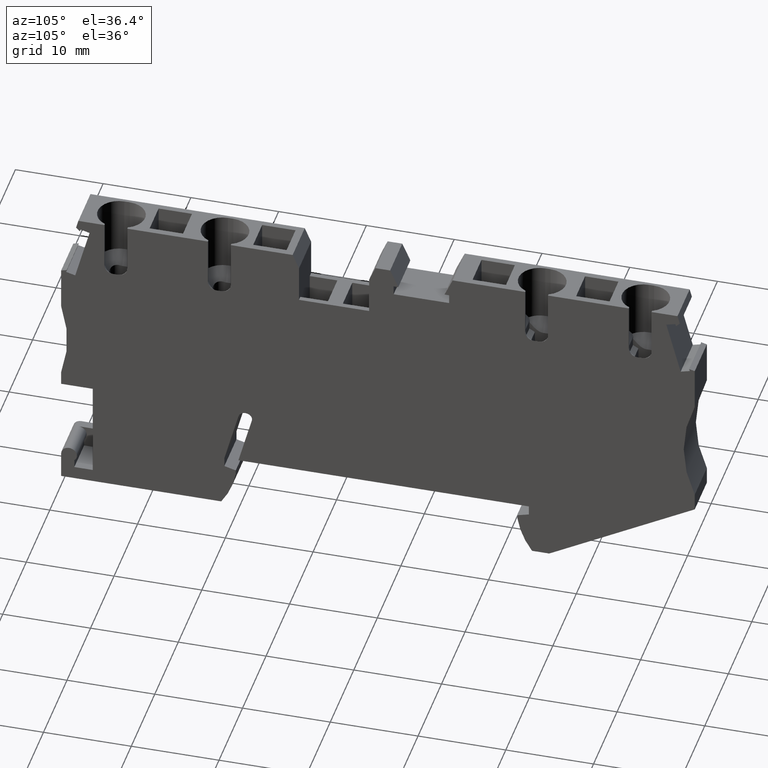
[diagram: clean part render]
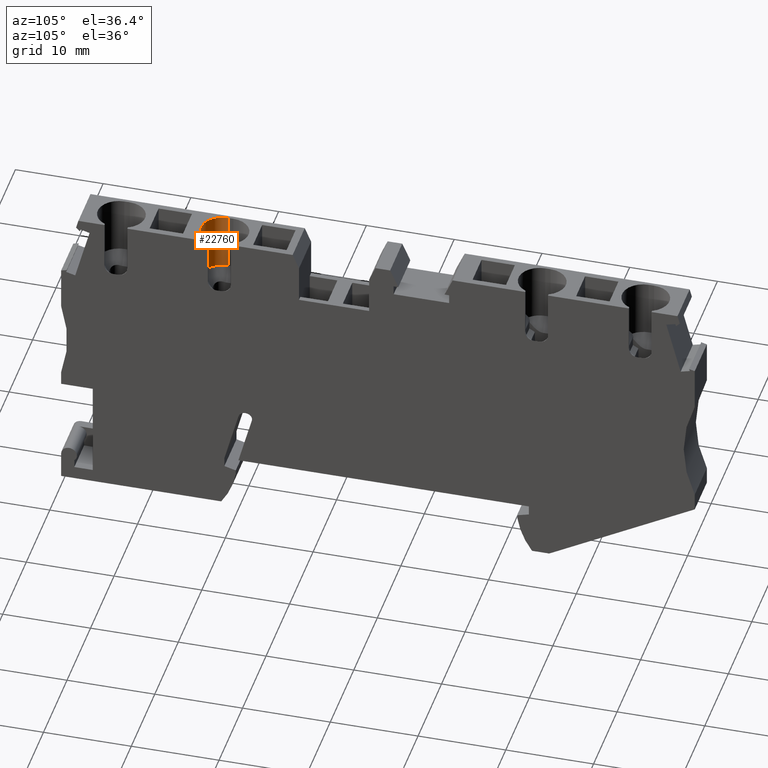
[diagram: same view with one face highlighted and labeled with its STEP entity id]
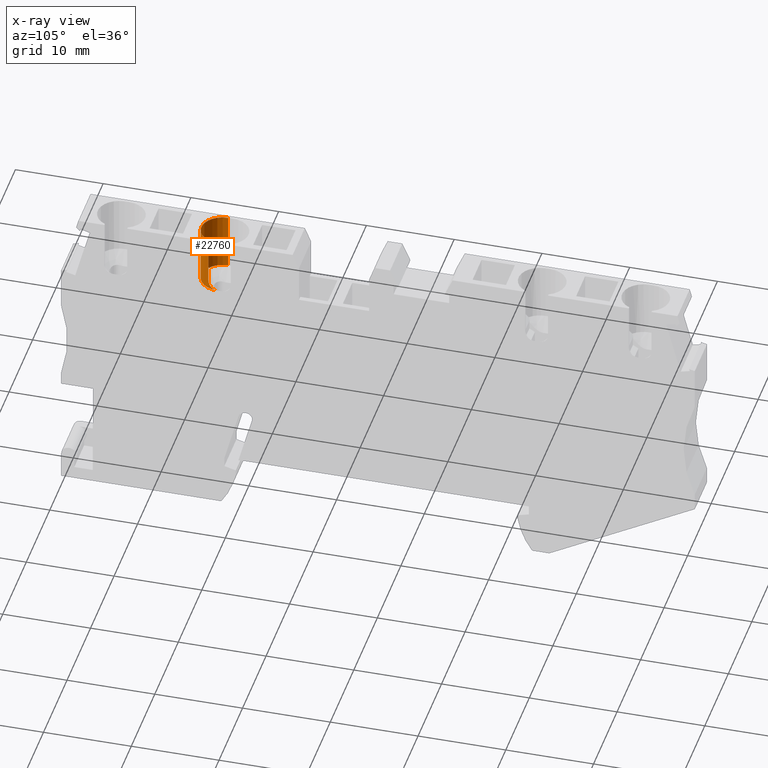
[diagram: x-ray of the same camera — body ghosted, the highlighted face saturated]
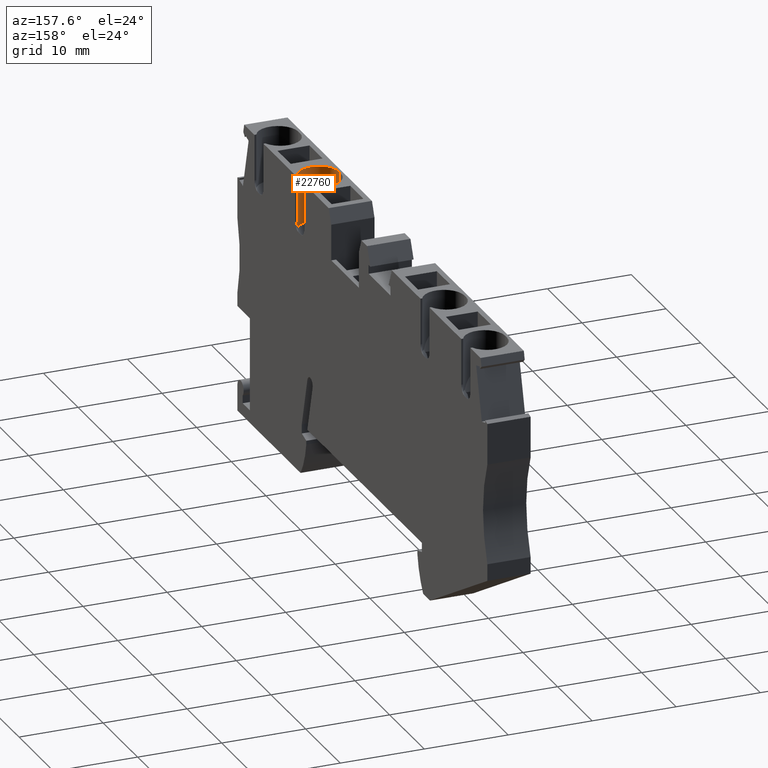
[diagram: same view with one face highlighted and labeled with its STEP entity id]
A machine part, auxiliary view. The second image highlights one B-rep face of the part: STEP entity #22760.
The next image is the same camera in x-ray: the body ghosted, the highlighted face saturated — about 0% of this face is hidden behind the body in this view.
A second angle (auxiliary view) of the same face is appended — the face is thin or edge-on in the first view.
In plain terms, the highlighted cylindrical surface (edge-blend (fillet) strip) has radius 2.4 mm, axis along (0, 0, 1).
Its self-contained STEP definition (entity closure, byte-faithful):
#16770=CARTESIAN_POINT('',(14.1467833101414,31.0375687600117,
-4.80000000000001));
#16780=VERTEX_POINT('',#16770);
#16930=CARTESIAN_POINT('',(14.9389337358259,24.586018736717,
-4.79999999999013));
#16940=VERTEX_POINT('',#16930);
#16970=CARTESIAN_POINT('',(14.9749700131935,24.2925268098612,
-4.7999999999898));
#16980=DIRECTION('',(-0.121869343405497,0.99254615164128,
-1.13103740604782E-12));
#16990=VECTOR('',#16980,1.);
#17000=LINE('',#16970,#16990);
#17010=EDGE_CURVE('',#16940,#16780,#17000,.T.);
#20850=CARTESIAN_POINT('',(14.8170643924407,25.5785648883674,
1.00000000000873));
#20860=DIRECTION('',(3.67227472839922E-12,1.59043286552523E-12,1.));
#20870=DIRECTION('',(0.99254615164128,0.121869343405497,
-3.83873116119485E-12));
#20880=AXIS2_PLACEMENT_3D('',#20850,#20860,#20870);
#20890=CYLINDRICAL_SURFACE('',#20880,1.);
#20900=CARTESIAN_POINT('',(14.9749700132023,24.2925268098651,
-2.39999999998979));
#20910=DIRECTION('',(-0.121869343405497,0.992546151641281,
-1.13103740604782E-12));
#20920=DIRECTION('',(-0.99254615164128,-0.121869343405497,
3.83873116119485E-12));
#20930=AXIS2_PLACEMENT_3D('',#20900,#20910,#20920);
#20940=CYLINDRICAL_SURFACE('',#20930,2.4);
#20950=CARTESIAN_POINT('',(13.824518240671,25.4566955459694,
-0.218257577060701));
#20960=CARTESIAN_POINT('',(13.8265439426175,25.4401975274187,
-0.218257577068431));
#20970=CARTESIAN_POINT('',(13.8289804712131,25.4237571705539,
-0.218067316109467));
#20980=CARTESIAN_POINT('',(13.8318201059643,25.4074108759251,
-0.217689124931567));
#20990=CARTESIAN_POINT('',(13.8346597507832,25.3910645233416,
-0.217310932412816));
#21000=CARTESIAN_POINT('',(13.8379024034197,25.3748126553134,
-0.216744838382278));
#21010=CARTESIAN_POINT('',(13.8415364987011,25.3586891767812,
-0.215996705073546));
#21020=CARTESIAN_POINT('',(13.845171902345,25.3425598934052,
-0.21524830241865));
#21030=CARTESIAN_POINT('',(13.849192176412,25.3265838762194,
-0.214319453802921));
#21040=CARTESIAN_POINT('',(13.8536018971602,25.3107216129293,
-0.213214334856115));
#21050=CARTESIAN_POINT('',(13.8580139218128,25.2948510622346,
-0.212108638528408));
#21060=CARTESIAN_POINT('',(13.8628234217196,25.279071290817,
-0.210824344158483));
#21070=CARTESIAN_POINT('',(13.8680233940395,25.2634122533421,
-0.209368591833399));
#21080=CARTESIAN_POINT('',(13.8732233466922,25.2477532750928,
-0.207912845014255));
#21090=CARTESIAN_POINT('',(13.8788136861527,25.2322153548162,
-0.206285674118027));
#21100=CARTESIAN_POINT('',(13.8847838348997,25.2168288491887,
-0.204497188938387));
#21110=CARTESIAN_POINT('',(13.8907539728188,25.2014423714673,
-0.202708707002487));
#21120=CARTESIAN_POINT('',(13.897103809074,25.1862076154905,
-0.200758961030397));
#21130=CARTESIAN_POINT('',(13.9038193480616,25.1711541755399,
-0.198660784949835));
#21140=CARTESIAN_POINT('',(13.9105348865496,25.1561007367092,
-0.196562609025373));
#21150=CARTESIAN_POINT('',(13.9176159993852,25.1412288933851,
-0.194316065028695));
#21160=CARTESIAN_POINT('',(13.9250456242752,25.1265665285806,
-0.191936309705527));
#21170=CARTESIAN_POINT('',(13.9324752603612,25.1119041416805,
-0.18955655079617));
#21180=CARTESIAN_POINT('',(13.940253269781,25.0974514791453,
-0.187043649637344));
#21190=CARTESIAN_POINT('',(13.9483600280602,25.0832339612938,
-0.184414573471207));
#21200=CARTESIAN_POINT('',(13.9564668107444,25.0690164006409,
-0.181785489390343));
#21210=CARTESIAN_POINT('',(13.9649021989742,25.0550341943966,
-0.179040302011553));
#21220=CARTESIAN_POINT('',(13.9736446381303,25.0413097180356,
-0.176197207619399));
#21230=CARTESIAN_POINT('',(13.9823859363627,25.0275870327743,
-0.173354484262577));
#21240=CARTESIAN_POINT('',(13.9914294075068,25.0141261423744,
-0.170415406049273));
#21250=CARTESIAN_POINT('',(14.000820054966,25.0008580582627,
-0.167377011765158));
#21260=CARTESIAN_POINT('',(14.0195925110057,24.9743343785269,
-0.161303083063426));
#21270=CARTESIAN_POINT('',(14.0396773454461,24.9487028122729,
-0.1548564570527));
#21280=CARTESIAN_POINT('',(14.0609528325275,24.9241221414638,
-0.148175269790326));
#21290=CARTESIAN_POINT('',(14.0822282101732,24.8995415970916,
-0.141494116894294));
#21300=CARTESIAN_POINT('',(14.1046911536077,24.8760156514733,
-0.134579966458064));
#21310=CARTESIAN_POINT('',(14.1281919042876,24.8536823495555,
-0.127579597206966));
#21320=CARTESIAN_POINT('',(14.1516928557521,24.8313488568275,
-0.120579168146446));
#21330=CARTESIAN_POINT('',(14.1762281476064,24.8102110725268,
-0.113494071772405));
#21340=CARTESIAN_POINT('',(14.2016303102754,24.7903765285719,
-0.106468109315122));
#21350=CARTESIAN_POINT('',(14.2270349629668,24.770540040355,
-0.0994414581446875));
#21360=CARTESIAN_POINT('',(14.2535061912748,24.7518513928071,
-0.0924184993691653));
#21370=CARTESIAN_POINT('',(14.2808982568035,24.7344524106695,
-0.0855404859810899));
#21380=CARTESIAN_POINT('',(14.3082901066206,24.7170535655484,
-0.0786625267571367));
#21390=CARTESIAN_POINT('',(14.3365987495186,24.7009472315583,
-0.0719310621964083));
#21400=CARTESIAN_POINT('',(14.3656502081731,24.6862503506317,
-0.0654809687429796));
#21410=CARTESIAN_POINT('',(14.3947018443684,24.6715533798887,
-0.0590308358714251));
#21420=CARTESIAN_POINT('',(14.4244914194818,24.6582682572939,
-0.0528635458853835));
#21430=CARTESIAN_POINT('',(14.4548297868289,24.6464779339992,
-0.0470974363748215));
#21440=CARTESIAN_POINT('',(14.4700048733494,24.6405804783434,
-0.0442132597245758));
#21450=CARTESIAN_POINT('',(14.4852880431032,24.6350661319153,
-0.0414341712206561));
#21460=CARTESIAN_POINT('',(14.5007440749447,24.6299124458233,
-0.0387575224924025));
#21470=CARTESIAN_POINT('',(14.5162006682224,24.6247585725251,
-0.0360807765356207));
#21480=CARTESIAN_POINT('',(14.5318210900645,24.6199701000306,
-0.033508565555774));
#21490=CARTESIAN_POINT('',(14.547577607785,24.6155608006806,
-0.0310552689126006));
#21500=CARTESIAN_POINT('',(14.5633341027025,24.6111515077119,
-0.0286019758198624));
#21510=CARTESIAN_POINT('',(14.5792264464793,24.6071214687367,
-0.0262676522496529));
#21520=CARTESIAN_POINT('',(14.5952251254966,24.6034816408203,
-0.0240651355983441));
#21530=CARTESIAN_POINT('',(14.6112238052026,24.5998418127472,
-0.0218626188522156));
#21540=CARTESIAN_POINT('',(14.6273285509057,24.5965922595005,
-0.0197919579097938));
#21550=CARTESIAN_POINT('',(14.6435088660275,24.5937408029308,
-0.0178641122446825));
#21560=CARTESIAN_POINT('',(14.6596892076368,24.5908893416931,
-0.0159362634236511));
#21570=CARTESIAN_POINT('',(14.6759448345497,24.5884360195078,
-0.0141512694798678));
#21580=CARTESIAN_POINT('',(14.6922451862279,24.5863853855734,
-0.0125179646176282));
#21590=CARTESIAN_POINT('',(14.7085445528388,24.5843348755635,
-0.0108847584597086));
#21600=CARTESIAN_POINT('',(14.7248826434063,24.5826865239101,
-0.00940334545438429));
#21610=CARTESIAN_POINT('',(14.7413032119528,24.5814388965615,
-0.00807546329893946));
#21620=CARTESIAN_POINT('',(14.7577182936946,24.5801916860979,
-0.00674802484493571));
#21630=CARTESIAN_POINT('',(14.7741906188756,24.579348134519,
-0.00557655939613186));
#21640=CARTESIAN_POINT('',(14.7906858353424,24.5789128630462,
-0.00456822804963956));
#21650=CARTESIAN_POINT('',(14.807181046546,24.5784775917123,
-0.00355989702488495));
#21660=CARTESIAN_POINT('',(14.8236987903214,24.5784506138923,
-0.00271472949870766));
#21670=CARTESIAN_POINT('',(14.8402042829919,24.5788326514818,
-0.00203735200549639));
#21680=CARTESIAN_POINT('',(14.8567098040599,24.5792146897286,
-0.00135997334686763));
#21690=CARTESIAN_POINT('',(14.8732027077082,24.5800057252388,
-0.000850398809150966));
#21700=CARTESIAN_POINT('',(14.889648987769,24.5812026289432,
-0.000510612221888023));
#21710=CARTESIAN_POINT('',(14.9060955430746,24.582399552679,
-0.000170819947961811));
#21720=CARTESIAN_POINT('',(14.9225354495941,24.5840052803479,
9.94166732793012E-12));
#21730=CARTESIAN_POINT('',(14.9389337358435,24.5860187367246,
9.87829835300396E-12));
#21740=B_SPLINE_CURVE_WITH_KNOTS('',3,(#20950,#20960,#20970,#20980,
#20990,#21000,#21010,#21020,#21030,#21040,#21050,#21060,#21070,#21080,
#21090,#21100,#21110,#21120,#21130,#21140,#21150,#21160,#21170,#21180,
#21190,#21200,#21210,#21220,#21230,#21240,#21250,#21260,#21270,#21280,
#21290,#21300,#21310,#21320,#21330,#21340,#21350,#21360,#21370,#21380,
#21390,#21400,#21410,#21420,#21430,#21440,#21450,#21460,#21470,#21480,
#21490,#21500,#21510,#21520,#21530,#21540,#21550,#21560,#21570,#21580,
#21590,#21600,#21610,#21620,#21630,#21640,#21650,#21660,#21670,#21680,
#21690,#21700,#21710,#21720,#21730),.UNSPECIFIED.,.F.,.F.,(4,3,3,3,3,3,3
,3,3,3,3,3,3,3,3,3,3,3,3,3,3,3,3,3,3,3,4),(0.,0.0498321201334389,
0.099548195088718,0.149094119696663,0.198707967250891,0.248459743894465,
0.298291079837169,0.348134719369593,0.397918126840415,0.447566855466838,
0.497095984353125,0.596498507803559,0.696070722779138,0.795337537072293,
0.89461643100737,0.99419757313767,1.09359939004753,1.14312308704159,
1.19271335117314,1.24236805227152,1.29201887061765,1.34160181740055,
1.39111400849227,1.44069122792461,1.49028025713506,1.53981117858042,
1.5893392517528),.UNSPECIFIED.);
#21750=SURFACE_CURVE('',#21740,(#20890,#20940),.CURVE_3D.);
#21760=CARTESIAN_POINT('',(13.8245182406713,25.4566955459695,
-0.218257577060584));
#21770=VERTEX_POINT('',#21760);
#21780=CARTESIAN_POINT('',(14.9389337358456,24.5860187367076,
-2.80367262287248E-14));
#21790=VERTEX_POINT('',#21780);
#21800=EDGE_CURVE('',#21770,#21790,#21750,.T.);
#22450=CARTESIAN_POINT('',(14.9749703196427,24.2925268474836,
-2.40000000000001));
#22460=DIRECTION('',(-0.121869343405148,0.992546151641323,0.));
#22470=DIRECTION('',(-0.992546151641323,-0.121869343405148,0.));
#22480=AXIS2_PLACEMENT_3D('',#22450,#22460,#22470);
#22490=CYLINDRICAL_SURFACE('',#22480,2.4);
#22500=CARTESIAN_POINT('',(14.1467833101409,31.0375687600144,
-2.40000000000001));
#22510=DIRECTION('',(0.121869343405148,-0.992546151641322,0.));
#22520=DIRECTION('',(-0.992546151641322,-0.121869343405148,0.));
#22530=AXIS2_PLACEMENT_3D('',#22500,#22510,#22520);
#22540=CIRCLE('',#22530,2.4);
#22550=CARTESIAN_POINT('',(13.1542371584992,30.9156994166092,
-0.218257577073074));
#22560=VERTEX_POINT('',#22550);
#22570=EDGE_CURVE('',#22560,#16780,#22540,.T.);
#22580=ORIENTED_EDGE('',*,*,#22570,.F.);
#22590=ORIENTED_EDGE('',*,*,#17010,.T.);
#22600=CARTESIAN_POINT('',(14.9389337358347,24.5860187367208,
-2.39999999999012));
#22610=DIRECTION('',(0.121869343405497,-0.99254615164128,
1.13103740604782E-12));
#22620=DIRECTION('',(-0.99254615164128,-0.121869343405497,
3.83873116119485E-12));
#22630=AXIS2_PLACEMENT_3D('',#22600,#22610,#22620);
#22640=CIRCLE('',#22630,2.40000000000001);
#22650=EDGE_CURVE('',#21790,#16940,#22640,.T.);
#22660=ORIENTED_EDGE('',*,*,#22650,.T.);
#22670=ORIENTED_EDGE('',*,*,#21800,.T.);
#22680=CARTESIAN_POINT('',(13.9824238615684,24.170657466463,
-0.218257577059096));
#22690=DIRECTION('',(-0.121869343405497,0.99254615164128,
-1.13103740604781E-12));
#22700=VECTOR('',#22690,1.);
#22710=LINE('',#22680,#22700);
#22720=EDGE_CURVE('',#21770,#22560,#22710,.T.);
#22730=ORIENTED_EDGE('',*,*,#22720,.F.);
#22740=EDGE_LOOP('',(#22730,#22670,#22660,#22590,#22580));
#22750=FACE_OUTER_BOUND('',#22740,.T.);
#22760=ADVANCED_FACE('',(#22750),#22490,.F.);